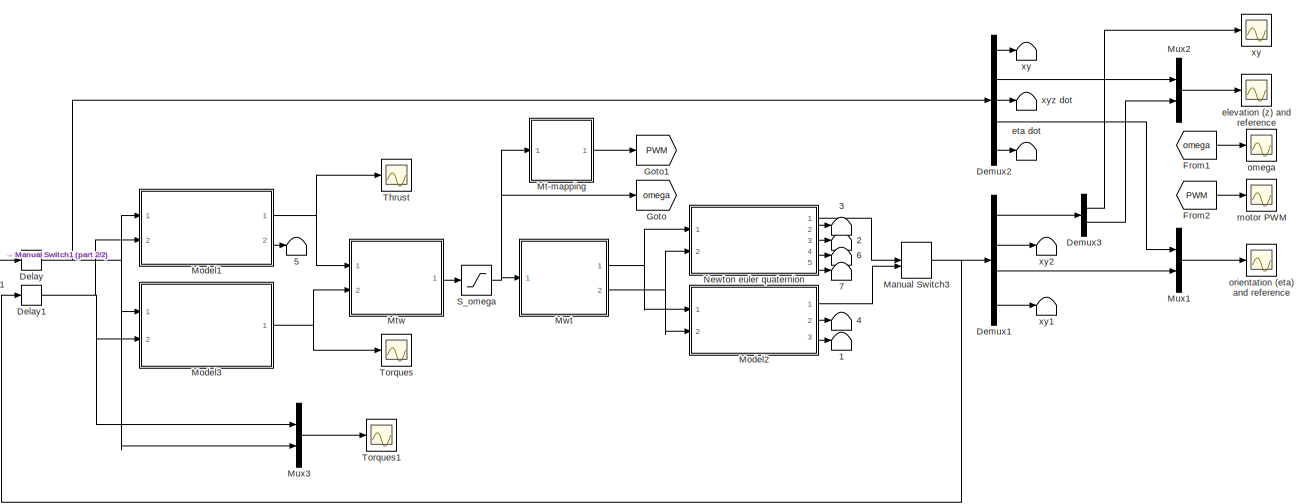
[diagram: root canvas - part 1/2, most of the canvas]
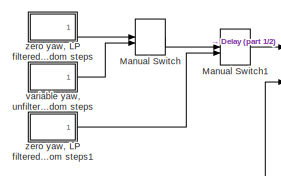
[diagram: root canvas - part 2/2, middle left region]
MODEL slx_6b6a4c3e694a
KIND model
CONFIG AbsTol = auto
CONFIG FixedStep = auto
CONFIG MaxStep = auto
CONFIG MinStep = auto
CONFIG RelTol = 1e-3
CONFIG SampleTimeConstraint = Unconstrained
CONFIG Solver = VariableStepAuto
CONFIG SolverMode = Auto
CONFIG SolverName = VariableStepAuto
CONFIG StartTime = 0.0
CONFIG StopTime = 60
BLOCK [Terminator]    1
BLOCK [Terminator]    2
BLOCK [Terminator]    3
BLOCK [Terminator]    4
BLOCK [Terminator]    5
BLOCK [Terminator]    6
BLOCK [Terminator]    7
BLOCK [Terminator]    eta dot
BLOCK [Terminator]    xy
BLOCK [Terminator]    xy1
BLOCK [Terminator]    xy2
BLOCK [Terminator]   xyz dot
BLOCK [Delay] Delay
  DelayLength = 1
  InitialCondition = 0
  InputPortMap = u0
  Ports = [1, 1]
  SampleTime = inner_h
BLOCK [Delay] Delay1
  DelayLength = 1
  InitialCondition = 0
  InputPortMap = u0
  Ports = [1, 1]
  SampleTime = inner_h
BLOCK [Demux] Demux1
  DisplayOption = bar
  Outputs = [3,3,3,3]
  Ports = [1, 4]
BLOCK [Demux] Demux2
  DisplayOption = bar
  Outputs = [2,1,3,3,3]
  Ports = [1, 5]
BLOCK [Demux] Demux3
  DisplayOption = bar
  Outputs = [2,1]
  Ports = [1, 2]
BLOCK [From] From1
  GotoTag = omega
BLOCK [From] From2
  GotoTag = PWM
BLOCK [Goto] Goto
  GotoTag = omega
BLOCK [Goto] Goto1
  GotoTag = PWM
BLOCK [ManualSwitch] Manual Switch
BLOCK [ManualSwitch] Manual Switch1
  CurrentSetting = 0
BLOCK [ManualSwitch] Manual Switch3
  CurrentSetting = 0
BLOCK [ModelReference] Model1
  ModelNameDialog = inner_PD_thrust_d.slx
  ModelReferenceVersion = 1.81
  Ports = [2, 2]
  Variant = off
BLOCK [ModelReference] Model2
  ModelNameDialog = quadcopter_model_c_Euler.mdl
  ModelReferenceVersion = 1.167
  Ports = [2, 3]
  Variant = off
BLOCK [ModelReference] Model3
  ModelNameDialog = inner_PD_angle_d.slx
  ModelReferenceVersion = 1.85
  Ports = [2, 1]
  Variant = off
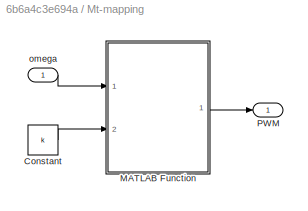
BLOCK [SubSystem] Mt-mapping
  Ports = [1, 1]
  RequestExecContextInheritance = off
  Variant = off
BLOCK [Constant] Mt-mapping/Constant
  Value = k
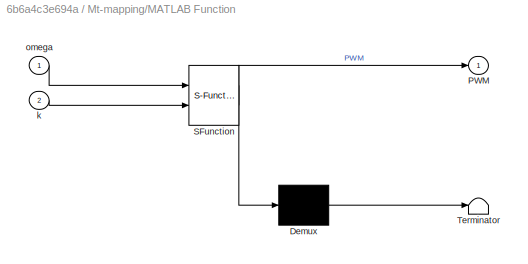
BLOCK [SubSystem] Mt-mapping/MATLAB Function
  ErrorFcn = Stateflow.Translate.translate
  PermitHierarchicalResolution = ExplicitOnly
  Ports = [2, 1]
  RequestExecContextInheritance = off
  SFBlockType = MATLAB Function
  TreatAsAtomicUnit = on
  Variant = off
BLOCK [Demux] Mt-mapping/MATLAB Function/ Demux 
  Outputs = 1
  Ports = [1, 1]
BLOCK [S-Function] Mt-mapping/MATLAB Function/ SFunction 
  EnableBusSupport = on
  FunctionName = sf_sfun
  PortCounts = [2 2]
  Ports = [2, 2]
  SFunctionDeploymentMode = off
  Tag = Stateflow S-Function inner_pd_discrete_test 3
BLOCK [Terminator] Mt-mapping/MATLAB Function/ Terminator 
BLOCK [Outport] Mt-mapping/MATLAB Function/PWM
  IconDisplay = Port number
BLOCK [Inport] Mt-mapping/MATLAB Function/k
  IconDisplay = Port number
  Port = 2
BLOCK [Inport] Mt-mapping/MATLAB Function/omega
  IconDisplay = Port number
BLOCK [Outport] Mt-mapping/PWM
  IconDisplay = Port number
BLOCK [Inport] Mt-mapping/omega
  IconDisplay = Port number
BLOCK [ModelReference] Mtw
  ModelNameDialog = thrust2omega.mdl
  ModelReferenceVersion = 1.3
  Ports = [2, 1]
  Variant = off
BLOCK [Mux] Mux1
  DisplayOption = bar
  Inputs = 2
  Ports = [2, 1]
BLOCK [Mux] Mux2
  DisplayOption = bar
  Inputs = 2
  Ports = [2, 1]
BLOCK [Mux] Mux3
  DisplayOption = bar
  Inputs = 2
  Ports = [2, 1]
BLOCK [ModelReference] Mwt
  ModelNameDialog = omega2thrust.mdl
  ModelReferenceVersion = 1.3
  Ports = [1, 2]
  Variant = off
BLOCK [ModelReference] Newton euler quaternion
  ModelNameDialog = quadcopter_model_c_NewtonEuler.mdl
  ModelReferenceVersion = 1.325
  Ports = [2, 5]
  Variant = off
BLOCK [Saturate] S_omega
  InputPortMap = u0
  LowerLimit = omega_min_lim
  Ports = [1, 1]
  UpperLimit = omega_max_lim
BLOCK [Scope] Thrust
  Ports = [1]
  ScopeSpecificationString = Simulink.scopes.TimeScopeBlockCfg('CurrentConfiguration', extmgr.ConfigurationSet(extmgr.Configuration('Core','General UI',true),extmgr.Configuration('Core','Source UI',true),extmgr.Configuration('Sources','WiredSimulink',true,'DataLoggingVariableName','ScopeData1'),extmgr.Configuration('Visuals','Time Domain',true,'SerializedDisplays',{struct('MinYLimReal','-0.0372','MaxYLimReal','0.33478','YLabe...<+1365ch>
BLOCK [Scope] Torques
  Ports = [1]
  ScopeSpecificationString = Simulink.scopes.TimeScopeBlockCfg('CurrentConfiguration', extmgr.ConfigurationSet(extmgr.Configuration('Core','General UI',true),extmgr.Configuration('Core','Source UI',true),extmgr.Configuration('Sources','WiredSimulink',true,'DataLoggingVariableName','ScopeData2'),extmgr.Configuration('Visuals','Time Domain',true,'SerializedDisplays',{struct('MinYLimReal','-0.125','MaxYLimReal','0.125','YLabelRe...<+1377ch>
BLOCK [Scope] Torques1
  Ports = [1]
  ScopeSpecificationString = Simulink.scopes.TimeScopeBlockCfg('CurrentConfiguration', extmgr.ConfigurationSet(extmgr.Configuration('Core','General UI',true),extmgr.Configuration('Core','Source UI',true),extmgr.Configuration('Sources','WiredSimulink',true,'DataLoggingVariableName','ScopeData3'),extmgr.Configuration('Visuals','Time Domain',true,'SerializedDisplays',{struct('MinYLimReal','-131208761702.83087','MaxYLimReal','597...<+1528ch>
BLOCK [Scope] elevation (z) and reference
  Ports = [1]
  ScopeSpecificationString = Simulink.scopes.TimeScopeBlockCfg('CurrentConfiguration', extmgr.ConfigurationSet(extmgr.Configuration('Core','General UI',true),extmgr.Configuration('Core','Source UI',true),extmgr.Configuration('Sources','WiredSimulink',true,'DataLoggingVariableName','ScopeData1','DataLoggingSaveFormat','Array','DataLoggingDecimation','1','DataLoggingDecimateData',true),extmgr.Configuration('Visuals','Time Domai...<+1544ch>
BLOCK [Scope] motor PWM
  Ports = [1]
  ScopeSpecificationString = Simulink.scopes.TimeScopeBlockCfg('CurrentConfiguration', extmgr.ConfigurationSet(extmgr.Configuration('Core','General UI',true),extmgr.Configuration('Core','Source UI',true),extmgr.Configuration('Sources','WiredSimulink',true,'DataLoggingVariableName','ScopeData1','DataLoggingSaveFormat','Array','DataLoggingDecimation','1','DataLoggingDecimateData',true),extmgr.Configuration('Visuals','Time Domai...<+1562ch>
BLOCK [Scope] omega 
  Ports = [1]
  ScopeSpecificationString = Simulink.scopes.TimeScopeBlockCfg('CurrentConfiguration', extmgr.ConfigurationSet(extmgr.Configuration('Core','General UI',true),extmgr.Configuration('Core','Source UI',true),extmgr.Configuration('Sources','WiredSimulink',true,'DataLoggingVariableName','ScopeData2','DataLoggingSaveFormat','Array','DataLoggingDecimation','1','DataLoggingDecimateData',true),extmgr.Configuration('Visuals','Time Domai...<+1542ch>
BLOCK [Scope] orientation (eta) and reference
  Ports = [1]
  ScopeSpecificationString = Simulink.scopes.TimeScopeBlockCfg('CurrentConfiguration', extmgr.ConfigurationSet(extmgr.Configuration('Core','General UI',true),extmgr.Configuration('Core','Source UI',true),extmgr.Configuration('Sources','WiredSimulink',true),extmgr.Configuration('Visuals','Time Domain',true,'SerializedDisplays',{struct('MinYLimReal','-1.11128','MaxYLimReal','1.11199','YLabelReal','','MinYLimMag','0.00000','MaxY...<+1470ch>
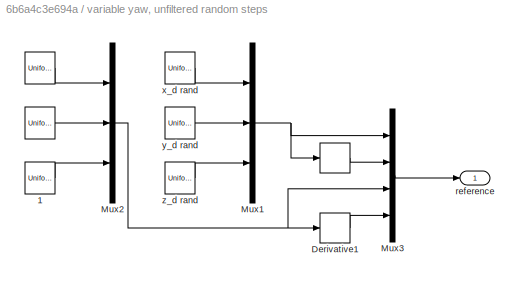
BLOCK [SubSystem] variable yaw, unfiltered random steps
  Ports = [0, 1]
  RequestExecContextInheritance = off
  Variant = off
BLOCK [UniformRandomNumber] variable yaw, unfiltered random steps/ 
  Maximum = 0.8
  Minimum = -0.8
  SampleTime = 10
  Seed = 4
BLOCK [UniformRandomNumber] variable yaw, unfiltered random steps/   
  Maximum = 0.2
  Minimum = -0.2
  SampleTime = 10
  Seed = 3
BLOCK [Derivative] variable yaw, unfiltered random steps/        
BLOCK [UniformRandomNumber] variable yaw, unfiltered random steps/ 1
  Maximum = 0.8
  Minimum = -0.8
  SampleTime = 10
  Seed = 5
BLOCK [Derivative] variable yaw, unfiltered random steps/Derivative1
BLOCK [Mux] variable yaw, unfiltered random steps/Mux1
  DisplayOption = bar
  Inputs = 3
  Ports = [3, 1]
BLOCK [Mux] variable yaw, unfiltered random steps/Mux2
  DisplayOption = bar
  Inputs = 3
  Ports = [3, 1]
BLOCK [Mux] variable yaw, unfiltered random steps/Mux3
  DisplayOption = bar
  Inputs = [3,3,3,3]
  Ports = [4, 1]
BLOCK [Outport] variable yaw, unfiltered random steps/reference
  IconDisplay = Port number
BLOCK [UniformRandomNumber] variable yaw, unfiltered random steps/x_d rand
  Maximum = 30
  Minimum = -30
  SampleTime = 10
BLOCK [UniformRandomNumber] variable yaw, unfiltered random steps/y_d rand
  Maximum = 30
  Minimum = -30
  SampleTime = 10
  Seed = 1
BLOCK [UniformRandomNumber] variable yaw, unfiltered random steps/z_d rand
  Maximum = 15
  Minimum = 0
  SampleTime = 10
  Seed = 2
BLOCK [Scope] xy
  Ports = [1]
  ScopeSpecificationString = Simulink.scopes.TimeScopeBlockCfg('CurrentConfiguration', extmgr.ConfigurationSet(extmgr.Configuration('Core','General UI',true),extmgr.Configuration('Core','Source UI',true),extmgr.Configuration('Sources','WiredSimulink',true,'DataLoggingVariableName','ScopeData1','DataLoggingSaveFormat','Array','DataLoggingDecimation','1','DataLoggingDecimateData',true),extmgr.Configuration('Visuals','Time Domai...<+1560ch>
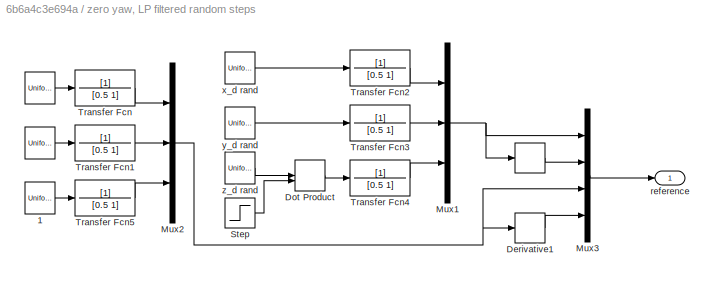
BLOCK [SubSystem] zero yaw, LP filtered random steps
  Ports = [0, 1]
  RequestExecContextInheritance = off
  Variant = off
BLOCK [UniformRandomNumber] zero yaw, LP filtered random steps/ 
  Maximum = max_ang_ref
  Minimum = -max_ang_ref
  SampleTime = 10
  Seed = 4
BLOCK [UniformRandomNumber] zero yaw, LP filtered random steps/   
  Maximum = max_ang_ref
  Minimum = -max_ang_ref
  SampleTime = 10
  Seed = 3
BLOCK [Derivative] zero yaw, LP filtered random steps/        
BLOCK [UniformRandomNumber] zero yaw, LP filtered random steps/ 1
  Maximum = max_ang_ref
  Minimum = -max_ang_ref
  SampleTime = 10
  Seed = 5
BLOCK [Derivative] zero yaw, LP filtered random steps/Derivative1
BLOCK [DotProduct] zero yaw, LP filtered random steps/Dot Product
  OutDataTypeStr = Inherit: Inherit via internal rule
BLOCK [Mux] zero yaw, LP filtered random steps/Mux1
  DisplayOption = bar
  Inputs = 3
  Ports = [3, 1]
BLOCK [Mux] zero yaw, LP filtered random steps/Mux2
  DisplayOption = bar
  Inputs = 3
  Ports = [3, 1]
BLOCK [Mux] zero yaw, LP filtered random steps/Mux3
  DisplayOption = bar
  Inputs = [3,3,3,3]
  Ports = [4, 1]
BLOCK [Step] zero yaw, LP filtered random steps/Step
  After = 0
  Before = 1
  SampleTime = 0
  Time = 40
BLOCK [TransferFcn] zero yaw, LP filtered random steps/Transfer Fcn
  Denominator = [0.5 1]
BLOCK [TransferFcn] zero yaw, LP filtered random steps/Transfer Fcn1
  Denominator = [0.5 1]
BLOCK [TransferFcn] zero yaw, LP filtered random steps/Transfer Fcn2
  Denominator = [0.5 1]
BLOCK [TransferFcn] zero yaw, LP filtered random steps/Transfer Fcn3
  Denominator = [0.5 1]
BLOCK [TransferFcn] zero yaw, LP filtered random steps/Transfer Fcn4
  Denominator = [0.5 1]
BLOCK [TransferFcn] zero yaw, LP filtered random steps/Transfer Fcn5
  Denominator = [0.5 1]
BLOCK [Outport] zero yaw, LP filtered random steps/reference
  IconDisplay = Port number
BLOCK [UniformRandomNumber] zero yaw, LP filtered random steps/x_d rand
  Maximum = 30
  Minimum = -30
  SampleTime = 10
BLOCK [UniformRandomNumber] zero yaw, LP filtered random steps/y_d rand
  Maximum = 30
  Minimum = -30
  SampleTime = 10
  Seed = 1
BLOCK [UniformRandomNumber] zero yaw, LP filtered random steps/z_d rand
  Maximum = 3
  Minimum = 0
  SampleTime = 10
  Seed = 2
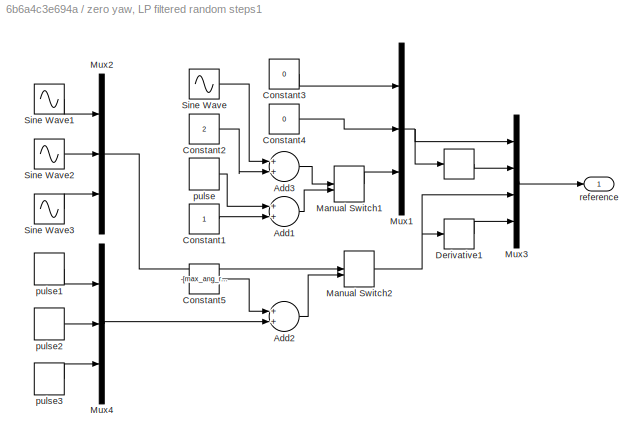
BLOCK [SubSystem] zero yaw, LP filtered random steps1
  Ports = [0, 1]
  RequestExecContextInheritance = off
  Variant = off
BLOCK [Derivative] zero yaw, LP filtered random steps1/        
BLOCK [Sum] zero yaw, LP filtered random steps1/Add1
  InputSameDT = off
  OutDataTypeStr = Inherit: Inherit via internal rule
  Ports = [2, 1]
  SaturateOnIntegerOverflow = off
BLOCK [Sum] zero yaw, LP filtered random steps1/Add2
  InputSameDT = off
  OutDataTypeStr = Inherit: Inherit via internal rule
  Ports = [2, 1]
  SaturateOnIntegerOverflow = off
BLOCK [Sum] zero yaw, LP filtered random steps1/Add3
  InputSameDT = off
  OutDataTypeStr = Inherit: Inherit via internal rule
  Ports = [2, 1]
  SaturateOnIntegerOverflow = off
BLOCK [Constant] zero yaw, LP filtered random steps1/Constant1
BLOCK [Constant] zero yaw, LP filtered random steps1/Constant2
  Value = 2
BLOCK [Constant] zero yaw, LP filtered random steps1/Constant3
  Value = 0
BLOCK [Constant] zero yaw, LP filtered random steps1/Constant4
  Value = 0
BLOCK [Constant] zero yaw, LP filtered random steps1/Constant5
  Value = -[max_ang_ref,max_ang_ref,max_ang_ref]
BLOCK [Derivative] zero yaw, LP filtered random steps1/Derivative1
BLOCK [ManualSwitch] zero yaw, LP filtered random steps1/Manual Switch1
BLOCK [ManualSwitch] zero yaw, LP filtered random steps1/Manual Switch2
BLOCK [Mux] zero yaw, LP filtered random steps1/Mux1
  DisplayOption = bar
  Inputs = 3
  Ports = [3, 1]
BLOCK [Mux] zero yaw, LP filtered random steps1/Mux2
  DisplayOption = bar
  Inputs = 3
  Ports = [3, 1]
BLOCK [Mux] zero yaw, LP filtered random steps1/Mux3
  DisplayOption = bar
  Inputs = [3,3,3,3]
  Ports = [4, 1]
BLOCK [Mux] zero yaw, LP filtered random steps1/Mux4
  DisplayOption = bar
  Inputs = 3
  Ports = [3, 1]
BLOCK [Sin] zero yaw, LP filtered random steps1/Sine Wave
  Ports = [0, 1]
  SampleTime = 0
BLOCK [Sin] zero yaw, LP filtered random steps1/Sine Wave1
  Amplitude = max_ang_ref
  Ports = [0, 1]
  SampleTime = 0
BLOCK [Sin] zero yaw, LP filtered random steps1/Sine Wave2
  Amplitude = max_ang_ref
  Phase = pi/2
  Ports = [0, 1]
BLOCK [Sin] zero yaw, LP filtered random steps1/Sine Wave3
  Amplitude = max_ang_ref
  Phase = pi
  Ports = [0, 1]
  SampleTime = 0
BLOCK [DiscretePulseGenerator] zero yaw, LP filtered random steps1/pulse
  Amplitude = 2
  Period = 10
  Ports = [0, 1]
  PulseType = Time based
  PulseWidth = 50
BLOCK [DiscretePulseGenerator] zero yaw, LP filtered random steps1/pulse1
  Amplitude = max_ang_ref*2
  Period = 10
  Ports = [0, 1]
  PulseType = Time based
  PulseWidth = 50
BLOCK [DiscretePulseGenerator] zero yaw, LP filtered random steps1/pulse2
  Amplitude = max_ang_ref*2
  Period = 10
  Ports = [0, 1]
  PulseType = Time based
  PulseWidth = 50
BLOCK [DiscretePulseGenerator] zero yaw, LP filtered random steps1/pulse3
  Amplitude = max_ang_ref*2
  Period = 10
  Ports = [0, 1]
  PulseType = Time based
  PulseWidth = 50
BLOCK [Outport] zero yaw, LP filtered random steps1/reference
  IconDisplay = Port number
NET Delay1:1 -> Model1:2, Model3:2, Mux3:1
NET Delay:1 -> Demux2:1, Model1:1, Model3:1, Mux3:2
LINE Demux1:1 -> Demux3:1
LINE Demux1:2 ->    xy2:1
LINE Demux1:3 -> Mux1:2
LINE Demux1:4 ->    xy1:1
LINE Demux2:1 ->    xy:1
LINE Demux2:2 -> Mux2:1
LINE Demux2:3 ->   xyz dot:1
LINE Demux2:4 -> Mux1:1
LINE Demux2:5 ->    eta dot:1
LINE Demux3:1 -> xy:1
LINE Demux3:2 -> Mux2:2
LINE From1:1 -> omega :1
LINE From2:1 -> motor PWM:1
LINE Manual Switch1:1 -> Delay:1
NET Manual Switch3:1 -> Delay1:1, Demux1:1
LINE Manual Switch:1 -> Manual Switch1:1
NET Model1:1 -> Mtw:1, Thrust:1
LINE Model1:2 ->    5:1
LINE Model2:1 -> Manual Switch3:2
LINE Model2:2 ->    4:1
LINE Model2:3 ->    1:1
NET Model3:1 -> Mtw:2, Torques:1
LINE Mt-mapping/Constant:1 -> Mt-mapping/MATLAB Function:2
LINE Mt-mapping/MATLAB Function:1 -> Mt-mapping/PWM:1
LINE Mt-mapping/omega:1 -> Mt-mapping/MATLAB Function:1
LINE Mt-mapping:1 -> Goto1:1
LINE Mtw:1 -> S_omega:1
LINE Mux1:1 -> orientation (eta) and reference:1
LINE Mux2:1 -> elevation (z) and reference:1
LINE Mux3:1 -> Torques1:1
NET Mwt:1 -> Model2:1, Newton euler quaternion:1
NET Mwt:2 -> Model2:2, Newton euler quaternion:2
LINE Newton euler quaternion:1 -> Manual Switch3:1
LINE Newton euler quaternion:2 ->    3:1
LINE Newton euler quaternion:3 ->    2:1
LINE Newton euler quaternion:4 ->    6:1
LINE Newton euler quaternion:5 ->    7:1
NET S_omega:1 -> Goto:1, Mt-mapping:1, Mwt:1
LINE variable yaw, unfiltered random steps/        :1 -> variable yaw, unfiltered random steps/Mux3:2
LINE variable yaw, unfiltered random steps/   :1 -> variable yaw, unfiltered random steps/Mux2:1
LINE variable yaw, unfiltered random steps/ 1:1 -> variable yaw, unfiltered random steps/Mux2:3
LINE variable yaw, unfiltered random steps/ :1 -> variable yaw, unfiltered random steps/Mux2:2
LINE variable yaw, unfiltered random steps/Derivative1:1 -> variable yaw, unfiltered random steps/Mux3:4
NET variable yaw, unfiltered random steps/Mux1:1 -> variable yaw, unfiltered random steps/        :1, variable yaw, unfiltered random steps/Mux3:1
NET variable yaw, unfiltered random steps/Mux2:1 -> variable yaw, unfiltered random steps/Derivative1:1, variable yaw, unfiltered random steps/Mux3:3
LINE variable yaw, unfiltered random steps/Mux3:1 -> variable yaw, unfiltered random steps/reference:1
LINE variable yaw, unfiltered random steps/x_d rand:1 -> variable yaw, unfiltered random steps/Mux1:1
LINE variable yaw, unfiltered random steps/y_d rand:1 -> variable yaw, unfiltered random steps/Mux1:2
LINE variable yaw, unfiltered random steps/z_d rand:1 -> variable yaw, unfiltered random steps/Mux1:3
LINE variable yaw, unfiltered random steps:1 -> Manual Switch:2
LINE zero yaw, LP filtered random steps/        :1 -> zero yaw, LP filtered random steps/Mux3:2
LINE zero yaw, LP filtered random steps/   :1 -> zero yaw, LP filtered random steps/Transfer Fcn:1
LINE zero yaw, LP filtered random steps/ 1:1 -> zero yaw, LP filtered random steps/Transfer Fcn5:1
LINE zero yaw, LP filtered random steps/ :1 -> zero yaw, LP filtered random steps/Transfer Fcn1:1
LINE zero yaw, LP filtered random steps/Derivative1:1 -> zero yaw, LP filtered random steps/Mux3:4
LINE zero yaw, LP filtered random steps/Dot Product:1 -> zero yaw, LP filtered random steps/Transfer Fcn4:1
NET zero yaw, LP filtered random steps/Mux1:1 -> zero yaw, LP filtered random steps/        :1, zero yaw, LP filtered random steps/Mux3:1
NET zero yaw, LP filtered random steps/Mux2:1 -> zero yaw, LP filtered random steps/Derivative1:1, zero yaw, LP filtered random steps/Mux3:3
LINE zero yaw, LP filtered random steps/Mux3:1 -> zero yaw, LP filtered random steps/reference:1
LINE zero yaw, LP filtered random steps/Step:1 -> zero yaw, LP filtered random steps/Dot Product:2
LINE zero yaw, LP filtered random steps/Transfer Fcn1:1 -> zero yaw, LP filtered random steps/Mux2:2
LINE zero yaw, LP filtered random steps/Transfer Fcn2:1 -> zero yaw, LP filtered random steps/Mux1:1
LINE zero yaw, LP filtered random steps/Transfer Fcn3:1 -> zero yaw, LP filtered random steps/Mux1:2
LINE zero yaw, LP filtered random steps/Transfer Fcn4:1 -> zero yaw, LP filtered random steps/Mux1:3
LINE zero yaw, LP filtered random steps/Transfer Fcn5:1 -> zero yaw, LP filtered random steps/Mux2:3
LINE zero yaw, LP filtered random steps/Transfer Fcn:1 -> zero yaw, LP filtered random steps/Mux2:1
LINE zero yaw, LP filtered random steps/x_d rand:1 -> zero yaw, LP filtered random steps/Transfer Fcn2:1
LINE zero yaw, LP filtered random steps/y_d rand:1 -> zero yaw, LP filtered random steps/Transfer Fcn3:1
LINE zero yaw, LP filtered random steps/z_d rand:1 -> zero yaw, LP filtered random steps/Dot Product:1
LINE zero yaw, LP filtered random steps1/        :1 -> zero yaw, LP filtered random steps1/Mux3:2
LINE zero yaw, LP filtered random steps1/Add1:1 -> zero yaw, LP filtered random steps1/Manual Switch1:2
LINE zero yaw, LP filtered random steps1/Add2:1 -> zero yaw, LP filtered random steps1/Manual Switch2:2
LINE zero yaw, LP filtered random steps1/Add3:1 -> zero yaw, LP filtered random steps1/Manual Switch1:1
LINE zero yaw, LP filtered random steps1/Constant1:1 -> zero yaw, LP filtered random steps1/Add1:2
LINE zero yaw, LP filtered random steps1/Constant2:1 -> zero yaw, LP filtered random steps1/Add3:2
LINE zero yaw, LP filtered random steps1/Constant3:1 -> zero yaw, LP filtered random steps1/Mux1:1
LINE zero yaw, LP filtered random steps1/Constant4:1 -> zero yaw, LP filtered random steps1/Mux1:2
LINE zero yaw, LP filtered random steps1/Constant5:1 -> zero yaw, LP filtered random steps1/Add2:1
LINE zero yaw, LP filtered random steps1/Derivative1:1 -> zero yaw, LP filtered random steps1/Mux3:4
LINE zero yaw, LP filtered random steps1/Manual Switch1:1 -> zero yaw, LP filtered random steps1/Mux1:3
NET zero yaw, LP filtered random steps1/Manual Switch2:1 -> zero yaw, LP filtered random steps1/Derivative1:1, zero yaw, LP filtered random steps1/Mux3:3
NET zero yaw, LP filtered random steps1/Mux1:1 -> zero yaw, LP filtered random steps1/        :1, zero yaw, LP filtered random steps1/Mux3:1
LINE zero yaw, LP filtered random steps1/Mux2:1 -> zero yaw, LP filtered random steps1/Manual Switch2:1
LINE zero yaw, LP filtered random steps1/Mux3:1 -> zero yaw, LP filtered random steps1/reference:1
LINE zero yaw, LP filtered random steps1/Mux4:1 -> zero yaw, LP filtered random steps1/Add2:2
LINE zero yaw, LP filtered random steps1/Sine Wave1:1 -> zero yaw, LP filtered random steps1/Mux2:1
LINE zero yaw, LP filtered random steps1/Sine Wave2:1 -> zero yaw, LP filtered random steps1/Mux2:2
LINE zero yaw, LP filtered random steps1/Sine Wave3:1 -> zero yaw, LP filtered random steps1/Mux2:3
LINE zero yaw, LP filtered random steps1/Sine Wave:1 -> zero yaw, LP filtered random steps1/Add3:1
LINE zero yaw, LP filtered random steps1/pulse1:1 -> zero yaw, LP filtered random steps1/Mux4:1
LINE zero yaw, LP filtered random steps1/pulse2:1 -> zero yaw, LP filtered random steps1/Mux4:2
LINE zero yaw, LP filtered random steps1/pulse3:1 -> zero yaw, LP filtered random steps1/Mux4:3
LINE zero yaw, LP filtered random steps1/pulse:1 -> zero yaw, LP filtered random steps1/Add1:1
LINE zero yaw, LP filtered random steps1:1 -> Manual Switch1:2
LINE zero yaw, LP filtered random steps:1 -> Manual Switch:1
note: NET lines group one-source signal fan-out (src -> all destinations, sorted); 1:1 wires keep LINE
CHART Mt-mapping/MATLAB Function states=1 transitions=1
  STATE_LABEL 'eML_blk_kernel()'
  STATE_LABEL 'SCRIPT:\nfunction PWM = Mt(omega, k)\n%#codegen\nrotor_thrusts = k.*omega.^2;\nbeta1 = 0.0877;\nbeta2 = 0.0660;\nPWM =  -beta1/(2*beta2) + sqrt((beta1/(2*beta2))^2 + rotor_thrusts/beta2);'
